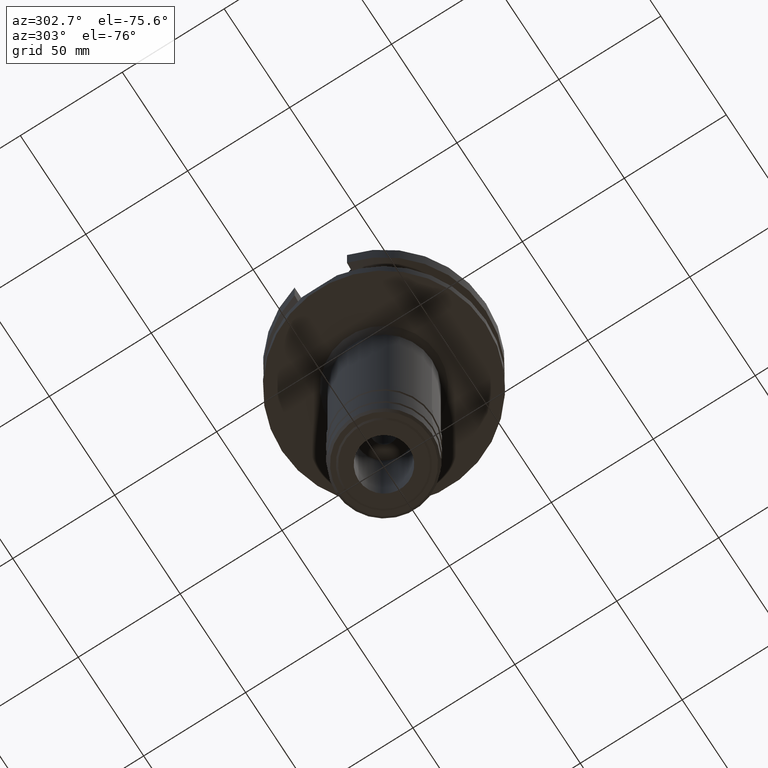
[diagram: clean part render]
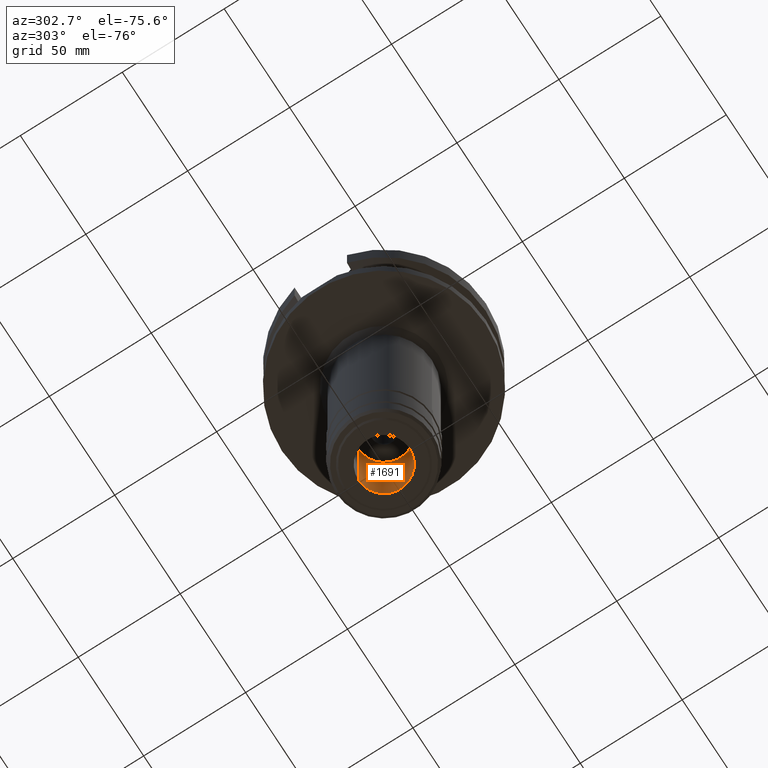
[diagram: same view with one face highlighted and labeled with its STEP entity id]
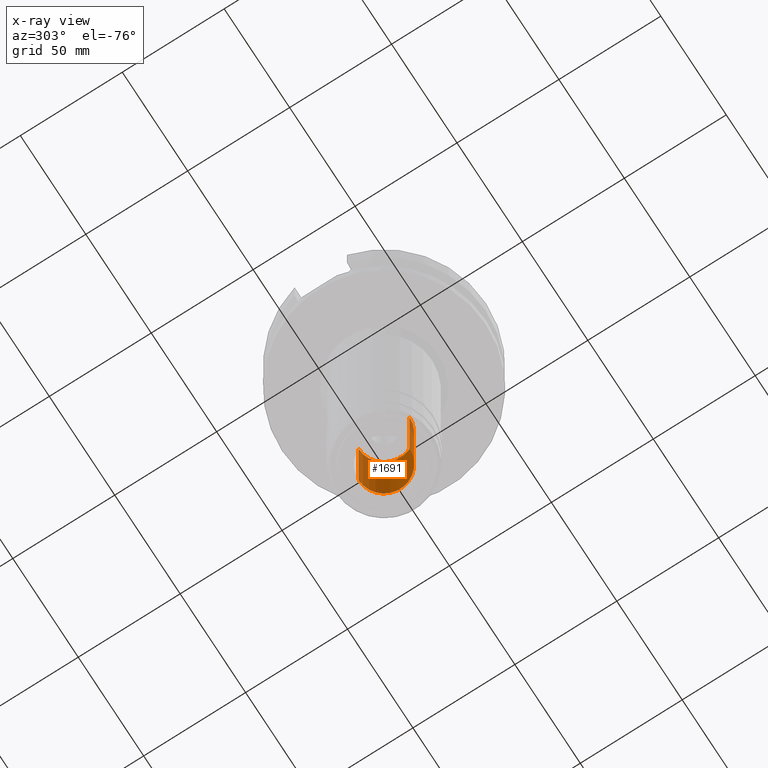
[diagram: x-ray of the same camera — body ghosted, the highlighted face saturated]
A machine part, auxiliary view. The second image highlights one B-rep face of the part: STEP entity #1691.
The next image is the same camera in x-ray: the body ghosted, the highlighted face saturated — about 2% of this face is hidden behind the body in this view.
In plain terms, the highlighted cylindrical surface (edge-blend (fillet) strip) has radius 12.5 mm, axis along (0, 0, -1).
Its self-contained STEP definition (entity closure, byte-faithful):
#216=CARTESIAN_POINT('',(0.E0,2.634705123686E-14,-1.13E2));
#217=DIRECTION('',(0.E0,0.E0,1.E0));
#218=DIRECTION('',(0.E0,-1.E0,0.E0));
#219=AXIS2_PLACEMENT_3D('',#216,#217,#218);
#232=DIRECTION('',(0.E0,0.E0,1.E0));
#233=VECTOR('',#232,5.2E1);
#234=CARTESIAN_POINT('',(0.E0,1.25E1,-1.65E2));
#235=LINE('',#234,#233);
#239=DIRECTION('',(0.E0,0.E0,1.E0));
#240=VECTOR('',#239,5.2E1);
#241=CARTESIAN_POINT('',(0.E0,-1.25E1,-1.65E2));
#242=LINE('',#241,#240);
#270=CARTESIAN_POINT('',(0.E0,2.634705123686E-14,-1.65E2));
#271=DIRECTION('',(0.E0,0.E0,-1.E0));
#272=DIRECTION('',(0.E0,1.E0,0.E0));
#273=AXIS2_PLACEMENT_3D('',#270,#271,#272);
#1314=CARTESIAN_POINT('',(0.E0,-1.25E1,-1.13E2));
#1315=CARTESIAN_POINT('',(0.E0,1.25E1,-1.13E2));
#1316=VERTEX_POINT('',#1314);
#1317=VERTEX_POINT('',#1315);
#1318=CARTESIAN_POINT('',(0.E0,1.25E1,-1.65E2));
#1319=VERTEX_POINT('',#1318);
#1320=CARTESIAN_POINT('',(0.E0,-1.25E1,-1.65E2));
#1321=VERTEX_POINT('',#1320);
#1677=CARTESIAN_POINT('',(0.E0,2.634705123686E-14,1.1514E2));
#1678=DIRECTION('',(0.E0,0.E0,-1.E0));
#1679=DIRECTION('',(0.E0,-1.E0,0.E0));
#1680=AXIS2_PLACEMENT_3D('',#1677,#1678,#1679);
#1681=CYLINDRICAL_SURFACE('',#1680,1.25E1);
#1683=ORIENTED_EDGE('',*,*,#1682,.T.);
#1684=ORIENTED_EDGE('',*,*,#1670,.F.);
#1686=ORIENTED_EDGE('',*,*,#1685,.F.);
#1688=ORIENTED_EDGE('',*,*,#1687,.F.);
#1689=EDGE_LOOP('',(#1683,#1684,#1686,#1688));
#1690=FACE_OUTER_BOUND('',#1689,.F.);
#220=CIRCLE('',#219,1.25E1);
#274=CIRCLE('',#273,1.25E1);
#1670=EDGE_CURVE('',#1316,#1317,#220,.T.);
#1682=EDGE_CURVE('',#1319,#1317,#235,.T.);
#1685=EDGE_CURVE('',#1321,#1316,#242,.T.);
#1687=EDGE_CURVE('',#1319,#1321,#274,.T.);
#1691=ADVANCED_FACE('',(#1690),#1681,.F.);